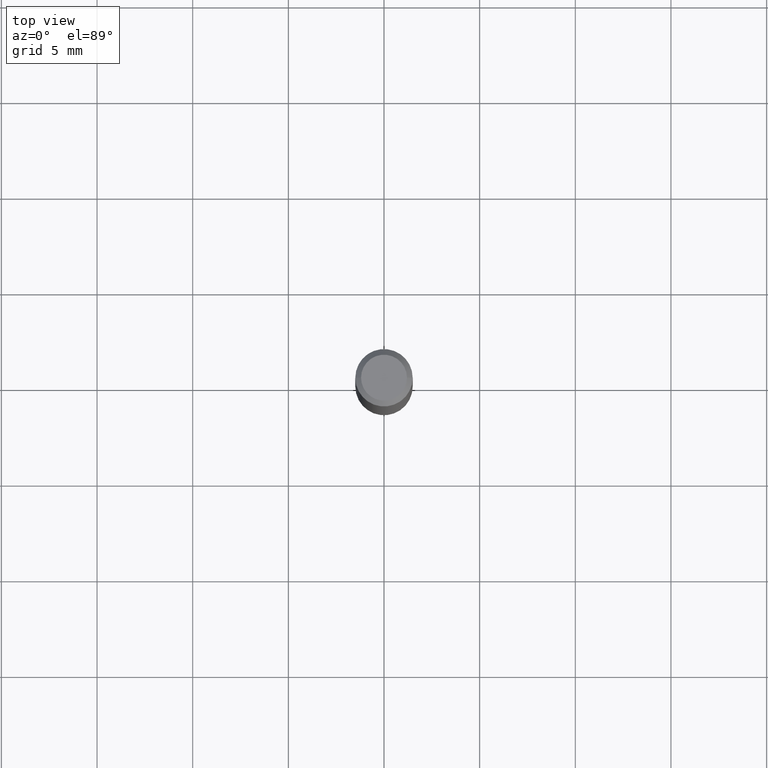
[diagram: clean part render]
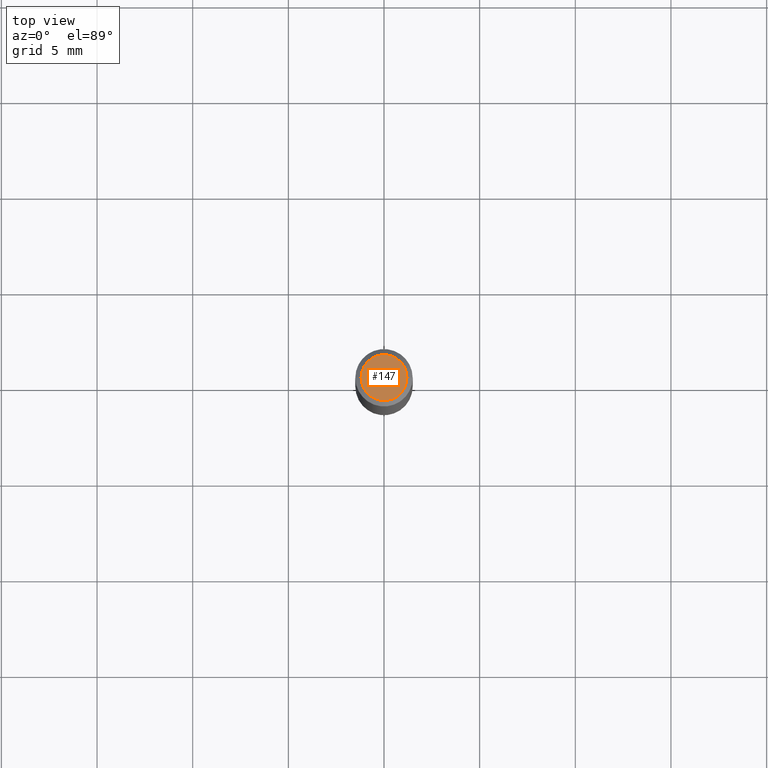
[diagram: same view with one face highlighted and labeled with its STEP entity id]
A machine part, top view. The second image highlights one B-rep face of the part: STEP entity #147.
In plain terms, the highlighted planar face has unit normal (0, -0, -1).
Its self-contained STEP definition (entity closure, byte-faithful):
#9 = CIRCLE ( 'NONE', #302, 0.04724000000000000421 ) ;
#11 = VERTEX_POINT ( 'NONE', #483 ) ;
#25 = CARTESIAN_POINT ( 'NONE',  ( 4.132873053354867254E-48, -5.900647395337818946E-34, -1.690012582823346072E-19 ) ) ;
#33 = DIRECTION ( 'NONE',  ( -2.445468806185136597E-29, 3.491481338843145583E-15, 1.000000000000000000 ) ) ;
#36 = CARTESIAN_POINT ( 'NONE',  ( 8.265746106709734507E-48, -1.180129479067563789E-33, -3.380025165646692144E-19 ) ) ;
#38 = DIRECTION ( 'NONE',  ( -2.445468806185136597E-29, 3.491481338843145583E-15, 1.000000000000000000 ) ) ;
#68 = ORIENTED_EDGE ( 'NONE', *, *, #352, .T. ) ;
#95 = AXIS2_PLACEMENT_3D ( 'NONE', #36, #38, #320 ) ;
#125 = ORIENTED_EDGE ( 'NONE', *, *, #458, .T. ) ;
#130 = EDGE_LOOP ( 'NONE', ( #68, #125 ) ) ;
#147 = ADVANCED_FACE ( 'NONE', ( #403 ), #300, .F. ) ;
#197 = DIRECTION ( 'NONE',  ( 1.000000000000000000, -6.982962677686266711E-15, 4.876185090822587894E-29 ) ) ;
#229 = CARTESIAN_POINT ( 'NONE',  ( 0.04724000000000000421, -3.852183633974369345E-16, -3.380025165621689721E-19 ) ) ;
#300 = PLANE ( 'NONE',  #489 ) ;
#302 = AXIS2_PLACEMENT_3D ( 'NONE', #305, #33, #197 ) ;
#304 = VERTEX_POINT ( 'NONE', #229 ) ;
#305 = CARTESIAN_POINT ( 'NONE',  ( 8.265746106709734507E-48, -1.180129479067563789E-33, -3.380025165646692144E-19 ) ) ;
#320 = DIRECTION ( 'NONE',  ( 1.000000000000000000, -6.982962677686266711E-15, 4.876185090822587894E-29 ) ) ;
#323 = CIRCLE ( 'NONE', #95, 0.04724000000000000421 ) ;
#352 = EDGE_CURVE ( 'NONE', #11, #304, #9, .T. ) ;
#403 = FACE_OUTER_BOUND ( 'NONE', #130, .T. ) ;
#458 = EDGE_CURVE ( 'NONE', #304, #11, #323, .T. ) ;
#469 = DIRECTION ( 'NONE',  ( -1.000000000000000000, 6.982962677686265922E-15, -4.876176775795935793E-29 ) ) ;
#473 = DIRECTION ( 'NONE',  ( 2.438088387897960049E-29, -3.491481338843145188E-15, -1.000000000000000000 ) ) ;
#483 = CARTESIAN_POINT ( 'NONE',  ( -0.04724000000000000421, 3.504923541997677355E-16, -3.380025165670481712E-19 ) ) ;
#489 = AXIS2_PLACEMENT_3D ( 'NONE', #25, #473, #469 ) ;